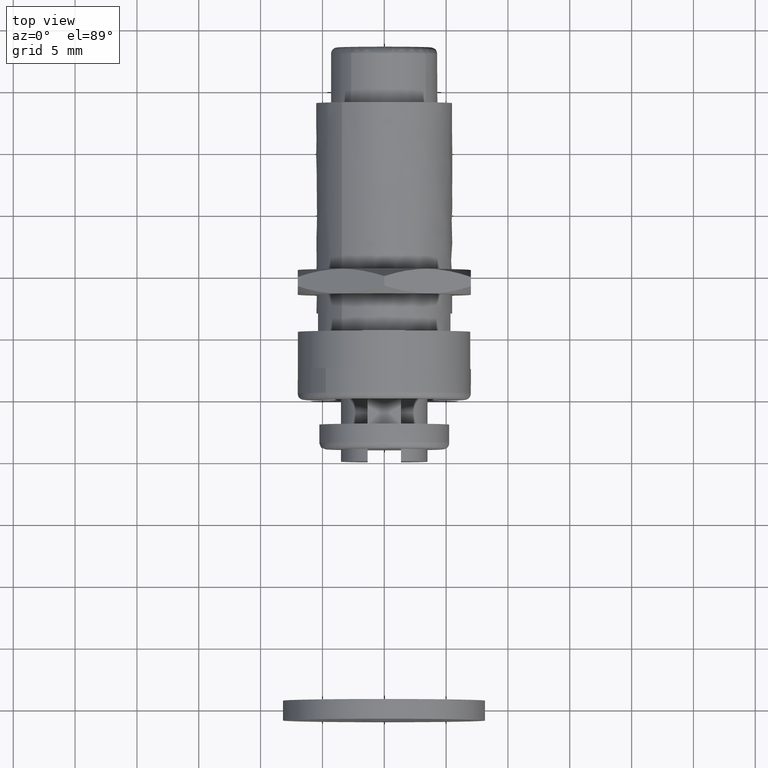
[diagram: clean part render]
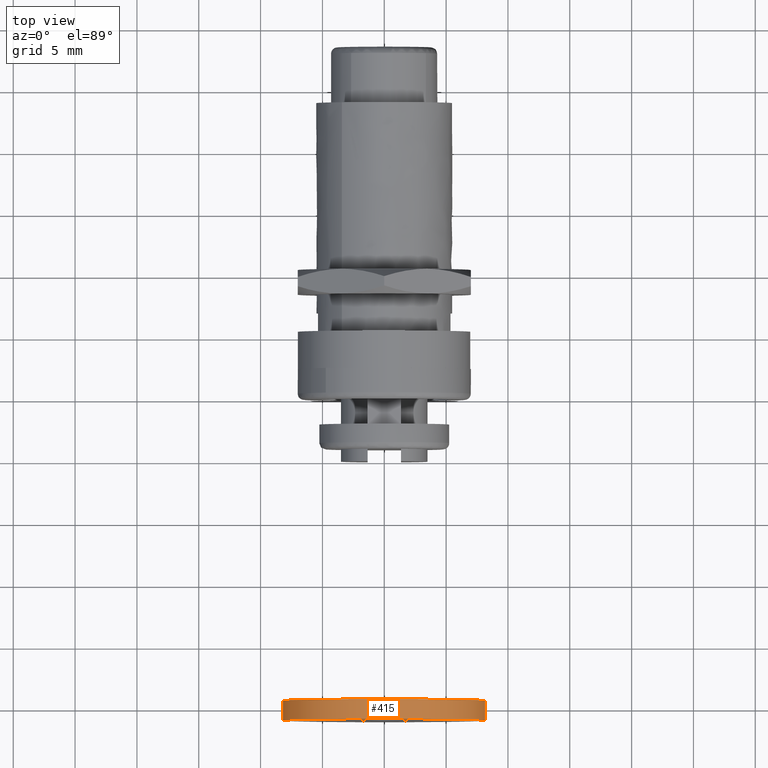
[diagram: same view with one face highlighted and labeled with its STEP entity id]
A machine part, top view. The second image highlights one B-rep face of the part: STEP entity #415.
In plain terms, the highlighted face is a freeform B-spline surface patch.
Its self-contained STEP definition (entity closure, byte-faithful):
#252=CARTESIAN_POINT('',(8.142676323732250,-34.072822825574740,-0.967870387416733));
#253=VERTEX_POINT('',#252);
#271=CARTESIAN_POINT('',(-8.184703061401997,-34.072822825576033,0.500586252858546));
#272=VERTEX_POINT('',#271);
#286=CARTESIAN_POINT('',(-8.184703052873287,-35.672828825575351,0.500586392308189));
#287=VERTEX_POINT('',#286);
#288=CARTESIAN_POINT('',(-8.184703061401997,-34.072822825576033,0.500586252858546));
#289=CARTESIAN_POINT('',(-8.184703052873287,-35.672828825575351,0.500586392308189));
#290=QUASI_UNIFORM_CURVE('',1,(#288,#289),.UNSPECIFIED.,.F.,.U.);
#291=EDGE_CURVE('',#272,#287,#290,.T.);
#308=CARTESIAN_POINT('',(8.142676309419214,-35.672828825575358,-0.967870507833284));
#309=VERTEX_POINT('',#308);
#325=CARTESIAN_POINT('',(8.142676323732250,-34.072822825574740,-0.967870387416733));
#326=CARTESIAN_POINT('',(8.142676309419214,-35.672828825575358,-0.967870507833284));
#327=QUASI_UNIFORM_CURVE('',1,(#325,#326),.UNSPECIFIED.,.F.,.U.);
#328=EDGE_CURVE('',#253,#309,#327,.T.);
#333=CARTESIAN_POINT('',(-8.184702352654913,-34.032822675575339,0.500597841040205));
#334=CARTESIAN_POINT('',(-8.685300193695122,-34.032822675575346,-7.684104511614707));
#335=CARTESIAN_POINT('',(-0.500597841040209,-34.032822675575339,-8.184702352654917));
#336=CARTESIAN_POINT('',(7.228653980253437,-34.032822675575332,-8.657443645848140));
#337=CARTESIAN_POINT('',(8.142675137153487,-34.032822675575339,-0.967880370082719));
#338=CARTESIAN_POINT('',(-8.184702352654913,-35.713828979325363,0.500597841040205));
#339=CARTESIAN_POINT('',(-8.685300193695122,-35.713828979325363,-7.684104511614707));
#340=CARTESIAN_POINT('',(-0.500597841040209,-35.713828979325363,-8.184702352654917));
#341=CARTESIAN_POINT('',(7.228653980253437,-35.713828979325363,-8.657443645848140));
#342=CARTESIAN_POINT('',(8.142675137153487,-35.713828979325363,-0.967880370082719));
#350=(BOUNDED_SURFACE()B_SPLINE_SURFACE(2,1,((#333,#338),(#334,#339),(#335,#340),(#336,#341),(#337,#342)),.UNSPECIFIED.,.F.,.F.,.U.)B_SPLINE_SURFACE_WITH_KNOTS((3,2,3),(2,2),(0.0,13.586199875274771,26.628951755538552),(0.0,1.0),.UNSPECIFIED.)GEOMETRIC_REPRESENTATION_ITEM()RATIONAL_B_SPLINE_SURFACE(((1.0,1.0),(0.707106781186548,0.707106781186548),(1.0,1.0),(0.718822509939086,0.718822509939086),(0.977505800795127,0.977505800795127)))REPRESENTATION_ITEM('')SURFACE());
#351=CARTESIAN_POINT('',(0.0,-34.072822825575336,-8.199997000000003));
#352=VERTEX_POINT('',#351);
#353=CARTESIAN_POINT('',(0.0,-34.072822825575336,-8.199997000000003));
#354=CARTESIAN_POINT('',(7.283037439902848,-34.072822825575351,-8.199997000000002));
#355=CARTESIAN_POINT('',(8.142676323732250,-34.072822825574740,-0.967870387416733));
#363=(BOUNDED_CURVE()B_SPLINE_CURVE(2,(#353,#354,#355),.UNSPECIFIED.,.F.,.U.)B_SPLINE_CURVE_WITH_KNOTS((3,3),(0.0,0.229562680708376),.UNSPECIFIED.)CURVE()GEOMETRIC_REPRESENTATION_ITEM()RATIONAL_B_SPLINE_CURVE((1.0,0.731050590111515,0.956027160294523))REPRESENTATION_ITEM(''));
#364=EDGE_CURVE('',#352,#253,#363,.T.);
#365=ORIENTED_EDGE('',*,*,#364,.T.);
#366=ORIENTED_EDGE('',*,*,#328,.T.);
#367=CARTESIAN_POINT('',(0.0,-35.672828825575351,-8.199997000000003));
#368=VERTEX_POINT('',#367);
#369=CARTESIAN_POINT('',(0.0,-35.672828825575351,-8.199997000000003));
#370=CARTESIAN_POINT('',(7.283037331440748,-35.672828825575344,-8.199997000000003));
#371=CARTESIAN_POINT('',(8.142676309419214,-35.672828825575358,-0.967870507833284));
#379=(BOUNDED_CURVE()B_SPLINE_CURVE(2,(#369,#370,#371),.UNSPECIFIED.,.F.,.U.)B_SPLINE_CURVE_WITH_KNOTS((3,3),(0.0,0.229562678209101),.UNSPECIFIED.)CURVE()GEOMETRIC_REPRESENTATION_ITEM()RATIONAL_B_SPLINE_CURVE((1.0,0.731050593039599,0.956027155395830))REPRESENTATION_ITEM(''));
#380=EDGE_CURVE('',#368,#309,#379,.T.);
#381=ORIENTED_EDGE('',*,*,#380,.F.);
#382=CARTESIAN_POINT('',(-8.184703052873287,-35.672828825575344,0.500586392308189));
#383=CARTESIAN_POINT('',(-8.199997000000000,-35.672828825575358,0.250526826974176));
#384=CARTESIAN_POINT('',(-8.199997000000000,-35.672828825575351,-3.330669E-015));
#385=CARTESIAN_POINT('',(-8.199997000000000,-35.672828825575358,-8.199997000000003));
#386=CARTESIAN_POINT('',(0.0,-35.672828825575351,-8.199997000000003));
#394=(BOUNDED_CURVE()B_SPLINE_CURVE(2,(#382,#383,#384,#385,#386),.UNSPECIFIED.,.F.,.U.)B_SPLINE_CURVE_WITH_KNOTS((3,2,3),(0.739333203599837,0.750000000000000,1.0),.UNSPECIFIED.)CURVE()GEOMETRIC_REPRESENTATION_ITEM()RATIONAL_B_SPLINE_CURVE((0.976072558949604,0.987503070671714,1.0,0.707106781186548,1.0))REPRESENTATION_ITEM(''));
#395=EDGE_CURVE('',#287,#368,#394,.T.);
#396=ORIENTED_EDGE('',*,*,#395,.F.);
#397=ORIENTED_EDGE('',*,*,#291,.F.);
#398=CARTESIAN_POINT('',(-8.184703061401997,-34.072822825576026,0.500586252858546));
#399=CARTESIAN_POINT('',(-8.199997000000000,-34.072822825575358,0.250526757053869));
#400=CARTESIAN_POINT('',(-8.199997000000000,-34.072822825575336,-3.330669E-015));
#401=CARTESIAN_POINT('',(-8.199997000000000,-34.072822825575344,-8.199997000000003));
#402=CARTESIAN_POINT('',(0.0,-34.072822825575336,-8.199997000000003));
#410=(BOUNDED_CURVE()B_SPLINE_CURVE(2,(#398,#399,#400,#401,#402),.UNSPECIFIED.,.F.,.U.)B_SPLINE_CURVE_WITH_KNOTS((3,2,3),(0.739333206539662,0.750000000000000,1.0),.UNSPECIFIED.)CURVE()GEOMETRIC_REPRESENTATION_ITEM()RATIONAL_B_SPLINE_CURVE((0.976072565250223,0.987503074115933,1.0,0.707106781186548,1.0))REPRESENTATION_ITEM(''));
#411=EDGE_CURVE('',#272,#352,#410,.T.);
#412=ORIENTED_EDGE('',*,*,#411,.T.);
#413=EDGE_LOOP('',(#365,#366,#381,#396,#397,#412));
#414=FACE_OUTER_BOUND('',#413,.T.);
#415=ADVANCED_FACE('',(#414),#350,.T.);